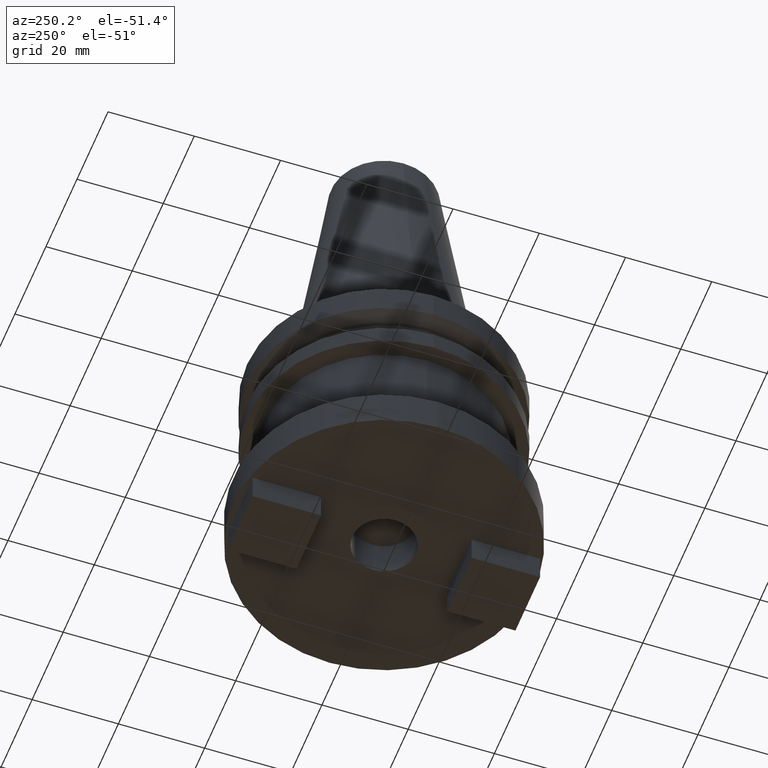
[diagram: clean part render]
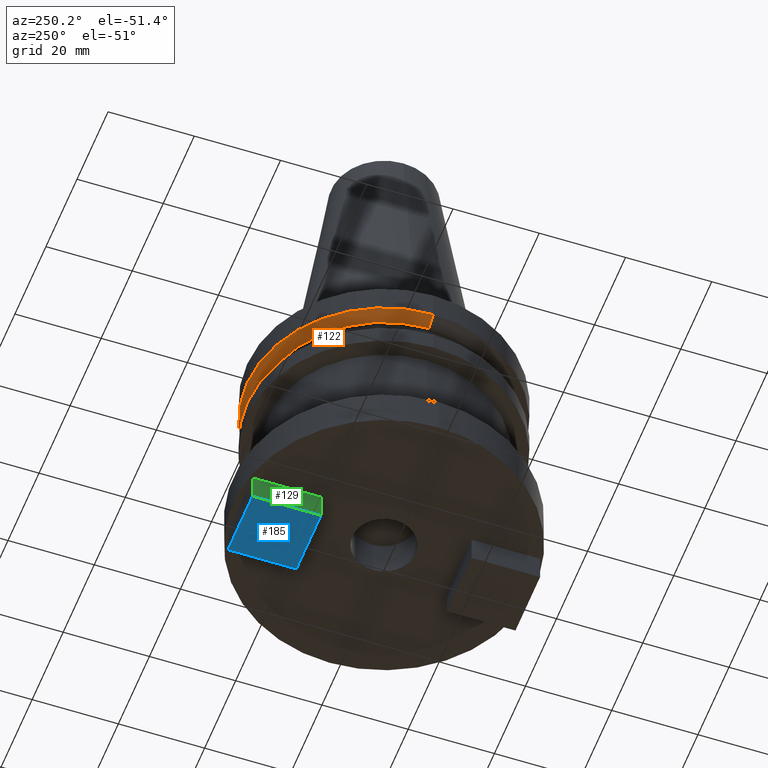
[diagram: same view with three faces highlighted in distinct colors, each labeled with its STEP entity id]
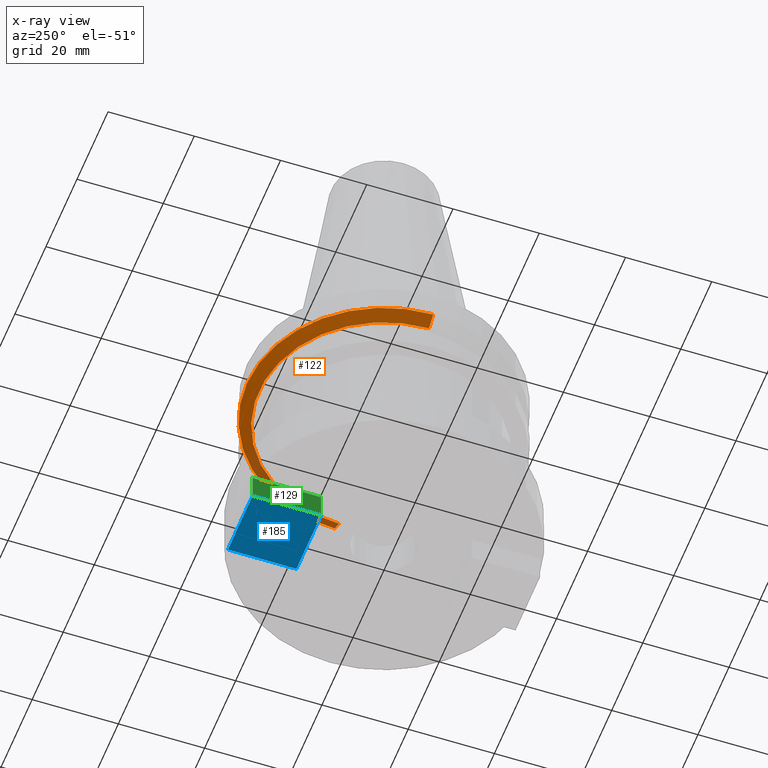
[diagram: x-ray of the same camera — body ghosted, the three highlighted faces saturated]
A machine part, auxiliary view with three faces highlighted in distinct colors.
The next image is the same camera in x-ray (body ghosted, the three faces saturated) — at least one of them is partly hidden behind the body in this view.
Their STEP definitions:

[orange] entity #122 — the highlighted conical surface has half-angle 60 deg.
#11 = CARTESIAN_POINT ( 'NONE',  ( 0.000000000000000000, 0.000000000000000000, -9.205000000000005400 ) ) ;
#36 = EDGE_CURVE ( 'NONE', #710, #884, #956, .T. ) ;
#68 = DIRECTION ( 'NONE',  ( 1.000000000000000000, 0.000000000000000000, 0.000000000000000000 ) ) ;
#69 = CONICAL_SURFACE ( 'NONE', #906, 28.97919780457007732, 1.047197551196598297 ) ;
#122 = ADVANCED_FACE ( 'NONE', ( #837 ), #69, .T. ) ;
#149 = EDGE_LOOP ( 'NONE', ( #977, #224, #629, #705 ) ) ;
#224 = ORIENTED_EDGE ( 'NONE', *, *, #583, .T. ) ;
#244 = AXIS2_PLACEMENT_3D ( 'NONE', #487, #983, #407 ) ;
#337 = DIRECTION ( 'NONE',  ( 1.000000000000000000, 0.000000000000000000, 0.000000000000000000 ) ) ;
#372 = LINE ( 'NONE', #603, #666 ) ;
#392 = EDGE_CURVE ( 'NONE', #531, #905, #511, .T. ) ;
#407 = DIRECTION ( 'NONE',  ( 1.000000000000000000, 0.000000000000000000, 0.000000000000000000 ) ) ;
#487 = CARTESIAN_POINT ( 'NONE',  ( 0.000000000000000000, 0.000000000000000000, -9.205000000000005400 ) ) ;
#511 = CIRCLE ( 'NONE', #244, 28.97919780457007732 ) ;
#523 = DIRECTION ( 'NONE',  ( 0.8660254037844389297, 0.000000000000000000, 0.4999999999999995004 ) ) ;
#531 = VERTEX_POINT ( 'NONE', #945 ) ;
#556 = CARTESIAN_POINT ( 'NONE',  ( 0.000000000000000000, 0.000000000000000000, -7.605276606597335842 ) ) ;
#583 = EDGE_CURVE ( 'NONE', #905, #884, #372, .T. ) ;
#601 = EDGE_CURVE ( 'NONE', #531, #710, #697, .T. ) ;
#603 = CARTESIAN_POINT ( 'NONE',  ( -28.97919780457007732, 3.548928183322474856E-15, -9.205000000000005400 ) ) ;
#611 = CARTESIAN_POINT ( 'NONE',  ( -28.97919780457007732, 3.718590885307660666E-15, -9.205000000000005400 ) ) ;
#629 = ORIENTED_EDGE ( 'NONE', *, *, #36, .F. ) ;
#664 = AXIS2_PLACEMENT_3D ( 'NONE', #556, #811, #68 ) ;
#666 = VECTOR ( 'NONE', #1044, 1000.000000000000000 ) ;
#697 = LINE ( 'NONE', #1050, #924 ) ;
#705 = ORIENTED_EDGE ( 'NONE', *, *, #601, .F. ) ;
#710 = VERTEX_POINT ( 'NONE', #1079 ) ;
#811 = DIRECTION ( 'NONE',  ( -0.000000000000000000, -0.000000000000000000, 1.000000000000000000 ) ) ;
#837 = FACE_OUTER_BOUND ( 'NONE', #149, .T. ) ;
#884 = VERTEX_POINT ( 'NONE', #974 ) ;
#905 = VERTEX_POINT ( 'NONE', #611 ) ;
#906 = AXIS2_PLACEMENT_3D ( 'NONE', #11, #1024, #337 ) ;
#924 = VECTOR ( 'NONE', #523, 1000.000000000000000 ) ;
#945 = CARTESIAN_POINT ( 'NONE',  ( 28.97919780457007732, 0.000000000000000000, -9.205000000000005400 ) ) ;
#956 = CIRCLE ( 'NONE', #664, 31.75000000000000000 ) ;
#974 = CARTESIAN_POINT ( 'NONE',  ( -31.75000000000000000, 3.888253587292846476E-15, -7.605276606597335842 ) ) ;
#977 = ORIENTED_EDGE ( 'NONE', *, *, #392, .T. ) ;
#983 = DIRECTION ( 'NONE',  ( -0.000000000000000000, -0.000000000000000000, 1.000000000000000000 ) ) ;
#1024 = DIRECTION ( 'NONE',  ( -0.000000000000000000, -0.000000000000000000, 1.000000000000000000 ) ) ;
#1044 = DIRECTION ( 'NONE',  ( -0.8660254037844389297, 1.060575238724907285E-16, 0.4999999999999995004 ) ) ;
#1050 = CARTESIAN_POINT ( 'NONE',  ( 28.97919780457007732, 0.000000000000000000, -9.205000000000005400 ) ) ;
#1079 = CARTESIAN_POINT ( 'NONE',  ( 31.75000000000000000, 0.000000000000000000, -7.605276606597335842 ) ) ;

[blue] entity #185 — the highlighted planar face has unit normal (-0, 0, -1).
#76 = VERTEX_POINT ( 'NONE', #170 ) ;
#94 = ORIENTED_EDGE ( 'NONE', *, *, #316, .T. ) ;
#116 = VECTOR ( 'NONE', #141, 1000.000000000000000 ) ;
#141 = DIRECTION ( 'NONE',  ( 1.000000000000000000, -0.000000000000000000, -0.000000000000000000 ) ) ;
#158 = LINE ( 'NONE', #999, #1001 ) ;
#170 = CARTESIAN_POINT ( 'NONE',  ( -7.934999999999999609, 17.46499999999999631, -57.20000000000000284 ) ) ;
#185 = ADVANCED_FACE ( 'NONE', ( #949 ), #438, .T. ) ;
#247 = DIRECTION ( 'NONE',  ( -1.000000000000000000, 0.000000000000000000, 0.000000000000000000 ) ) ;
#291 = VECTOR ( 'NONE', #627, 1000.000000000000000 ) ;
#301 = DIRECTION ( 'NONE',  ( 0.000000000000000000, -1.000000000000000000, 0.000000000000000000 ) ) ;
#310 = CARTESIAN_POINT ( 'NONE',  ( -7.934999999999999609, 33.33499999999999375, -57.20000000000000284 ) ) ;
#316 = EDGE_CURVE ( 'NONE', #76, #990, #643, .T. ) ;
#341 = AXIS2_PLACEMENT_3D ( 'NONE', #602, #455, #955 ) ;
#350 = ORIENTED_EDGE ( 'NONE', *, *, #435, .T. ) ;
#406 = CARTESIAN_POINT ( 'NONE',  ( -7.934999999999999609, 33.33499999999999375, -57.20000000000000284 ) ) ;
#435 = EDGE_CURVE ( 'NONE', #990, #1061, #708, .T. ) ;
#438 = PLANE ( 'NONE',  #341 ) ;
#455 = DIRECTION ( 'NONE',  ( -0.000000000000000000, 0.000000000000000000, -1.000000000000000000 ) ) ;
#480 = VECTOR ( 'NONE', #301, 1000.000000000000000 ) ;
#484 = CARTESIAN_POINT ( 'NONE',  ( 7.934999999999999609, 33.33499999999999375, -57.20000000000000284 ) ) ;
#524 = VERTEX_POINT ( 'NONE', #966 ) ;
#602 = CARTESIAN_POINT ( 'NONE',  ( 0.000000000000000000, 0.000000000000000000, -57.20000000000000284 ) ) ;
#627 = DIRECTION ( 'NONE',  ( -0.000000000000000000, 1.000000000000000000, -0.000000000000000000 ) ) ;
#628 = LINE ( 'NONE', #818, #480 ) ;
#643 = LINE ( 'NONE', #310, #291 ) ;
#661 = EDGE_CURVE ( 'NONE', #1061, #524, #628, .T. ) ;
#676 = EDGE_LOOP ( 'NONE', ( #94, #350, #928, #729 ) ) ;
#708 = LINE ( 'NONE', #1064, #116 ) ;
#729 = ORIENTED_EDGE ( 'NONE', *, *, #1042, .T. ) ;
#818 = CARTESIAN_POINT ( 'NONE',  ( 7.934999999999999609, 33.33499999999999375, -57.20000000000000284 ) ) ;
#928 = ORIENTED_EDGE ( 'NONE', *, *, #661, .T. ) ;
#949 = FACE_OUTER_BOUND ( 'NONE', #676, .T. ) ;
#955 = DIRECTION ( 'NONE',  ( -1.000000000000000000, 0.000000000000000000, 0.000000000000000000 ) ) ;
#966 = CARTESIAN_POINT ( 'NONE',  ( 7.934999999999999609, 17.46499999999999631, -57.20000000000000284 ) ) ;
#990 = VERTEX_POINT ( 'NONE', #406 ) ;
#999 = CARTESIAN_POINT ( 'NONE',  ( 7.934999999999999609, 17.46499999999999631, -57.20000000000000284 ) ) ;
#1001 = VECTOR ( 'NONE', #247, 1000.000000000000000 ) ;
#1042 = EDGE_CURVE ( 'NONE', #524, #76, #158, .T. ) ;
#1061 = VERTEX_POINT ( 'NONE', #484 ) ;
#1064 = CARTESIAN_POINT ( 'NONE',  ( 7.934999999999999609, 33.33499999999999375, -57.20000000000000284 ) ) ;

[green] entity #129 — the highlighted planar face has unit normal (1, 0, 0).
#58 = EDGE_CURVE ( 'NONE', #76, #933, #97, .T. ) ;
#76 = VERTEX_POINT ( 'NONE', #170 ) ;
#92 = DIRECTION ( 'NONE',  ( -0.000000000000000000, -0.000000000000000000, 1.000000000000000000 ) ) ;
#97 = LINE ( 'NONE', #423, #923 ) ;
#98 = ORIENTED_EDGE ( 'NONE', *, *, #626, .F. ) ;
#102 = PLANE ( 'NONE',  #718 ) ;
#129 = ADVANCED_FACE ( 'NONE', ( #260 ), #102, .F. ) ;
#140 = CARTESIAN_POINT ( 'NONE',  ( -7.934999999999999609, 33.33499999999999375, -50.79999999999999716 ) ) ;
#155 = VECTOR ( 'NONE', #709, 1000.000000000000000 ) ;
#168 = CARTESIAN_POINT ( 'NONE',  ( -7.934999999999999609, 33.33499999999999375, -50.79999999999999716 ) ) ;
#170 = CARTESIAN_POINT ( 'NONE',  ( -7.934999999999999609, 17.46499999999999631, -57.20000000000000284 ) ) ;
#180 = DIRECTION ( 'NONE',  ( 1.000000000000000000, 0.000000000000000000, 0.000000000000000000 ) ) ;
#260 = FACE_OUTER_BOUND ( 'NONE', #428, .T. ) ;
#291 = VECTOR ( 'NONE', #627, 1000.000000000000000 ) ;
#298 = ORIENTED_EDGE ( 'NONE', *, *, #960, .T. ) ;
#310 = CARTESIAN_POINT ( 'NONE',  ( -7.934999999999999609, 33.33499999999999375, -57.20000000000000284 ) ) ;
#316 = EDGE_CURVE ( 'NONE', #76, #990, #643, .T. ) ;
#406 = CARTESIAN_POINT ( 'NONE',  ( -7.934999999999999609, 33.33499999999999375, -57.20000000000000284 ) ) ;
#423 = CARTESIAN_POINT ( 'NONE',  ( -7.934999999999999609, 17.46499999999999631, -57.20000000000000284 ) ) ;
#427 = DIRECTION ( 'NONE',  ( 0.000000000000000000, 0.000000000000000000, -1.000000000000000000 ) ) ;
#428 = EDGE_LOOP ( 'NONE', ( #298, #98, #562, #1066 ) ) ;
#473 = DIRECTION ( 'NONE',  ( -0.000000000000000000, 1.000000000000000000, -0.000000000000000000 ) ) ;
#555 = CARTESIAN_POINT ( 'NONE',  ( -7.934999999999999609, 33.33499999999999375, -57.20000000000000284 ) ) ;
#562 = ORIENTED_EDGE ( 'NONE', *, *, #316, .F. ) ;
#626 = EDGE_CURVE ( 'NONE', #990, #861, #825, .T. ) ;
#627 = DIRECTION ( 'NONE',  ( -0.000000000000000000, 1.000000000000000000, -0.000000000000000000 ) ) ;
#643 = LINE ( 'NONE', #310, #291 ) ;
#709 = DIRECTION ( 'NONE',  ( -0.000000000000000000, -0.000000000000000000, 1.000000000000000000 ) ) ;
#718 = AXIS2_PLACEMENT_3D ( 'NONE', #754, #180, #427 ) ;
#721 = VECTOR ( 'NONE', #473, 1000.000000000000000 ) ;
#754 = CARTESIAN_POINT ( 'NONE',  ( -7.934999999999999609, 33.33499999999999375, -57.20000000000000284 ) ) ;
#789 = CARTESIAN_POINT ( 'NONE',  ( -7.934999999999999609, 17.46499999999999631, -50.79999999999999716 ) ) ;
#825 = LINE ( 'NONE', #555, #155 ) ;
#861 = VERTEX_POINT ( 'NONE', #140 ) ;
#902 = LINE ( 'NONE', #168, #721 ) ;
#923 = VECTOR ( 'NONE', #92, 1000.000000000000000 ) ;
#933 = VERTEX_POINT ( 'NONE', #789 ) ;
#960 = EDGE_CURVE ( 'NONE', #933, #861, #902, .T. ) ;
#990 = VERTEX_POINT ( 'NONE', #406 ) ;
#1066 = ORIENTED_EDGE ( 'NONE', *, *, #58, .T. ) ;